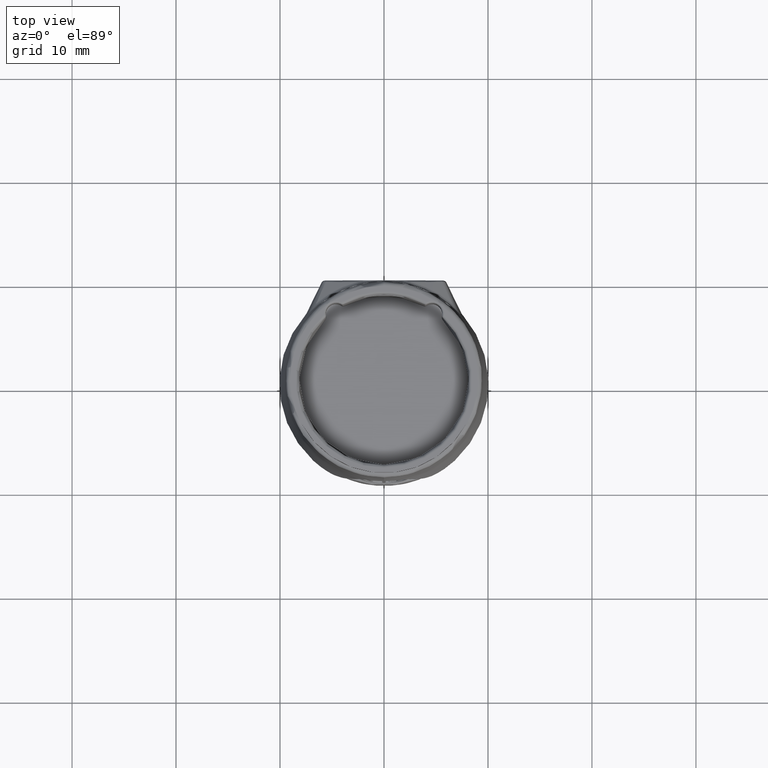
[diagram: clean part render]
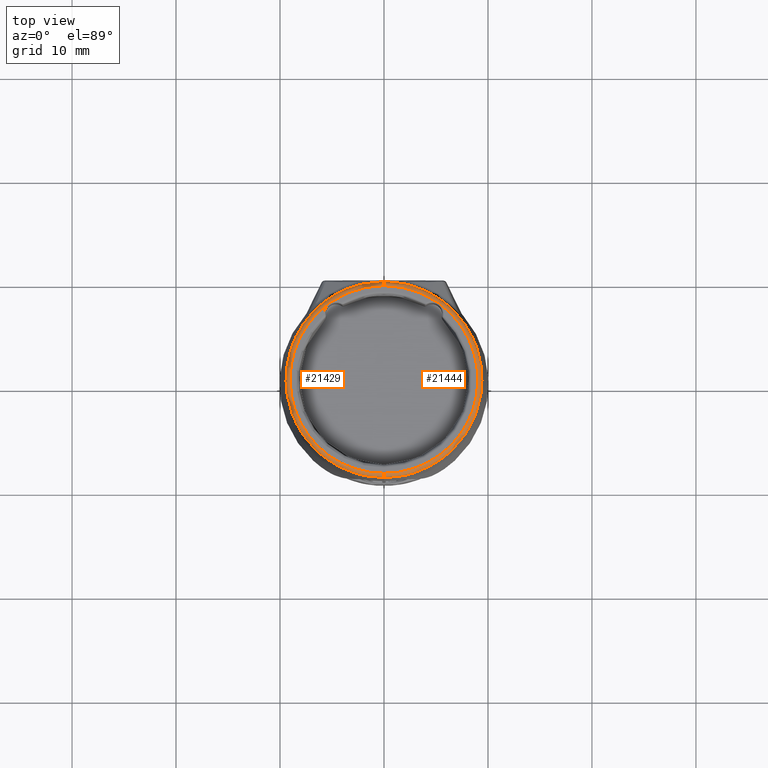
[diagram: same view with one multi-face feature highlighted, each face labeled with its STEP entity id]
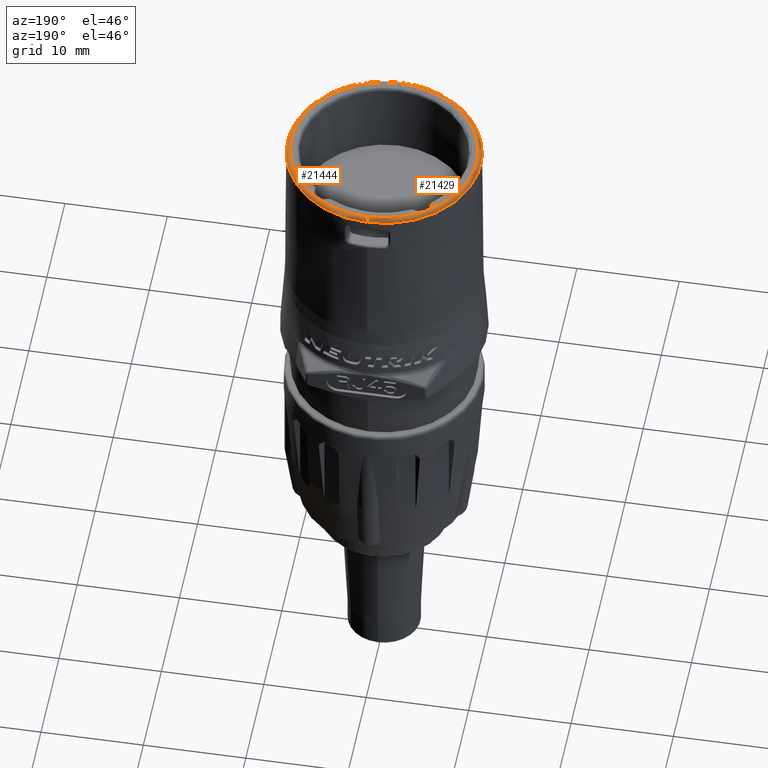
[diagram: same view with one multi-face feature highlighted, each face labeled with its STEP entity id]
A machine part, top view. The highlighted faces form ONE feature: a constant-radius fillet chain: 2 tangent blend faces with common blend radius 0.4 mm. The faces share edges in the B-rep.
A second angle (auxiliary view) of the same feature is appended — it is thin or edge-on in the first view.
Their STEP definitions:
[1] entity #21429 (Torus):
#548=CARTESIAN_POINT('',(0.E0,0.E0,1.450304869193E1));
#549=DIRECTION('',(0.E0,0.E0,1.E0));
#550=DIRECTION('',(0.E0,1.E0,0.E0));
#551=AXIS2_PLACEMENT_3D('',#548,#549,#550);
#8015=CARTESIAN_POINT('',(0.E0,0.E0,1.49E1));
#8016=DIRECTION('',(0.E0,0.E0,1.E0));
#8017=DIRECTION('',(0.E0,1.E0,0.E0));
#8018=AXIS2_PLACEMENT_3D('',#8015,#8016,#8017);
#8055=CARTESIAN_POINT('',(0.E0,0.E0,1.49E1));
#8056=DIRECTION('',(0.E0,0.E0,1.E0));
#8057=DIRECTION('',(-6.081444642054E-1,7.938263731171E-1,0.E0));
#8058=AXIS2_PLACEMENT_3D('',#8055,#8056,#8057);
#8104=CARTESIAN_POINT('',(-5.490350903456E0,7.166693946291E0,1.49E1));
#8105=CARTESIAN_POINT('',(-5.461955217609E0,7.210845155447E0,1.489999989587E1));
#8106=CARTESIAN_POINT('',(-5.395809532123E0,7.292528246032E0,1.489779161618E1));
#8107=CARTESIAN_POINT('',(-5.269581667580E0,7.389949337916E0,1.489709066223E1));
#8108=CARTESIAN_POINT('',(-5.156534284287E0,7.437662684893E0,1.489999937234E1));
#8109=CARTESIAN_POINT('',(-5.093330733124E0,7.454088653669E0,1.49E1));
#8111=CARTESIAN_POINT('',(0.E0,9.028037161828E0,1.45E1));
#8112=DIRECTION('',(-1.E0,0.E0,0.E0));
#8113=DIRECTION('',(0.E0,0.E0,1.E0));
#8114=AXIS2_PLACEMENT_3D('',#8111,#8112,#8113);
#8123=CARTESIAN_POINT('',(0.E0,-9.028037161828E0,1.45E1));
#8124=DIRECTION('',(1.E0,0.E0,0.E0));
#8125=DIRECTION('',(0.E0,0.E0,1.E0));
#8126=AXIS2_PLACEMENT_3D('',#8123,#8124,#8125);
#8239=CARTESIAN_POINT('',(0.E0,-9.428025543507E0,1.450304869193E1));
#8240=CARTESIAN_POINT('',(0.E0,9.428025543507E0,1.450304869193E1));
#8241=VERTEX_POINT('',#8239);
#8242=VERTEX_POINT('',#8240);
#8243=CARTESIAN_POINT('',(0.E0,9.028037161828E0,1.49E1));
#8244=VERTEX_POINT('',#8243);
#8245=CARTESIAN_POINT('',(0.E0,-9.028037161828E0,1.49E1));
#8246=VERTEX_POINT('',#8245);
#8251=CARTESIAN_POINT('',(-5.093331058870E0,7.454088493633E0,1.49E1));
#8252=VERTEX_POINT('',#8251);
#8255=VERTEX_POINT('',#8104);
#21414=CARTESIAN_POINT('',(0.E0,0.E0,1.45E1));
#21415=DIRECTION('',(0.E0,0.E0,-1.E0));
#21416=DIRECTION('',(1.013973348842E-2,9.999485915810E-1,0.E0));
#21417=AXIS2_PLACEMENT_3D('',#21414,#21415,#21416);
#21418=TOROIDAL_SURFACE('',#21417,9.028037161828E0,4.E-1);
#21419=ORIENTED_EDGE('',*,*,#21405,.F.);
#21420=ORIENTED_EDGE('',*,*,#21284,.T.);
#21422=ORIENTED_EDGE('',*,*,#21421,.T.);
#21423=ORIENTED_EDGE('',*,*,#10103,.F.);
#21425=ORIENTED_EDGE('',*,*,#21424,.F.);
#21426=ORIENTED_EDGE('',*,*,#21263,.T.);
#21427=EDGE_LOOP('',(#21419,#21420,#21422,#21423,#21425,#21426));
#21428=FACE_OUTER_BOUND('',#21427,.F.);
#21429=ADVANCED_FACE('',(#21428),#21418,.T.);
#552=CIRCLE('',#551,9.428025543507E0);
#8019=CIRCLE('',#8018,9.028037161828E0);
#8059=CIRCLE('',#8058,9.028037161828E0);
#8110=B_SPLINE_CURVE_WITH_KNOTS('',3,(#8104,#8105,#8106,#8107,#8108,#8109),
.UNSPECIFIED.,.F.,.F.,(4,1,1,4),(0.E0,3.333333333333E-1,6.666666666667E-1,1.E0),
.UNSPECIFIED.);
#8115=CIRCLE('',#8114,4.E-1);
#8127=CIRCLE('',#8126,4.E-1);
#10103=EDGE_CURVE('',#8242,#8241,#552,.T.);
#21263=EDGE_CURVE('',#8244,#8252,#8019,.T.);
#21284=EDGE_CURVE('',#8255,#8246,#8059,.T.);
#21405=EDGE_CURVE('',#8255,#8252,#8110,.T.);
#21421=EDGE_CURVE('',#8246,#8241,#8127,.T.);
#21424=EDGE_CURVE('',#8244,#8242,#8115,.T.);
[2] entity #21444 (Torus):
#16=CARTESIAN_POINT('',(0.E0,0.E0,1.450304869193E1));
#17=DIRECTION('',(0.E0,0.E0,1.E0));
#18=DIRECTION('',(0.E0,-1.E0,0.E0));
#19=AXIS2_PLACEMENT_3D('',#16,#17,#18);
#8020=CARTESIAN_POINT('',(0.E0,0.E0,1.49E1));
#8021=DIRECTION('',(0.E0,0.E0,1.E0));
#8022=DIRECTION('',(5.641681135638E-1,8.256599418876E-1,0.E0));
#8023=AXIS2_PLACEMENT_3D('',#8020,#8021,#8022);
#8050=CARTESIAN_POINT('',(0.E0,0.E0,1.49E1));
#8051=DIRECTION('',(0.E0,0.E0,1.E0));
#8052=DIRECTION('',(0.E0,-1.E0,0.E0));
#8053=AXIS2_PLACEMENT_3D('',#8050,#8051,#8052);
#8111=CARTESIAN_POINT('',(0.E0,9.028037161828E0,1.45E1));
#8112=DIRECTION('',(-1.E0,0.E0,0.E0));
#8113=DIRECTION('',(0.E0,0.E0,1.E0));
#8114=AXIS2_PLACEMENT_3D('',#8111,#8112,#8113);
#8116=CARTESIAN_POINT('',(5.093330640673E0,7.454088683695E0,1.49E1));
#8117=CARTESIAN_POINT('',(5.144142019638E0,7.440903540070E0,1.489999989587E1));
#8118=CARTESIAN_POINT('',(5.242398289139E0,7.403579468940E0,1.489779161618E1));
#8119=CARTESIAN_POINT('',(5.374370981191E0,7.314094518648E0,1.489709066223E1));
#8120=CARTESIAN_POINT('',(5.455005942817E0,7.221605250119E0,1.489999937234E1));
#8121=CARTESIAN_POINT('',(5.490350830076E0,7.166694046576E0,1.49E1));
#8123=CARTESIAN_POINT('',(0.E0,-9.028037161828E0,1.45E1));
#8124=DIRECTION('',(1.E0,0.E0,0.E0));
#8125=DIRECTION('',(0.E0,0.E0,1.E0));
#8126=AXIS2_PLACEMENT_3D('',#8123,#8124,#8125);
#8239=CARTESIAN_POINT('',(0.E0,-9.428025543507E0,1.450304869193E1));
#8240=CARTESIAN_POINT('',(0.E0,9.428025543507E0,1.450304869193E1));
#8241=VERTEX_POINT('',#8239);
#8242=VERTEX_POINT('',#8240);
#8243=CARTESIAN_POINT('',(0.E0,9.028037161828E0,1.49E1));
#8244=VERTEX_POINT('',#8243);
#8245=CARTESIAN_POINT('',(0.E0,-9.028037161828E0,1.49E1));
#8246=VERTEX_POINT('',#8245);
#8267=CARTESIAN_POINT('',(5.490350502056E0,7.166694381959E0,1.49E1));
#8268=VERTEX_POINT('',#8267);
#8271=VERTEX_POINT('',#8116);
#21430=CARTESIAN_POINT('',(0.E0,0.E0,1.45E1));
#21431=DIRECTION('',(0.E0,0.E0,-1.E0));
#21432=DIRECTION('',(-1.013973348842E-2,-9.999485915810E-1,0.E0));
#21433=AXIS2_PLACEMENT_3D('',#21430,#21431,#21432);
#21434=TOROIDAL_SURFACE('',#21433,9.028037161828E0,4.E-1);
#21436=ORIENTED_EDGE('',*,*,#21435,.F.);
#21437=ORIENTED_EDGE('',*,*,#21265,.T.);
#21438=ORIENTED_EDGE('',*,*,#21424,.T.);
#21439=ORIENTED_EDGE('',*,*,#9364,.F.);
#21440=ORIENTED_EDGE('',*,*,#21421,.F.);
#21441=ORIENTED_EDGE('',*,*,#21282,.T.);
#21442=EDGE_LOOP('',(#21436,#21437,#21438,#21439,#21440,#21441));
#21443=FACE_OUTER_BOUND('',#21442,.F.);
#21444=ADVANCED_FACE('',(#21443),#21434,.T.);
#20=CIRCLE('',#19,9.428025543507E0);
#8024=CIRCLE('',#8023,9.028037161828E0);
#8054=CIRCLE('',#8053,9.028037161828E0);
#8115=CIRCLE('',#8114,4.E-1);
#8122=B_SPLINE_CURVE_WITH_KNOTS('',3,(#8116,#8117,#8118,#8119,#8120,#8121),
.UNSPECIFIED.,.F.,.F.,(4,1,1,4),(0.E0,3.333333333333E-1,6.666666666667E-1,1.E0),
.UNSPECIFIED.);
#8127=CIRCLE('',#8126,4.E-1);
#9364=EDGE_CURVE('',#8241,#8242,#20,.T.);
#21265=EDGE_CURVE('',#8271,#8244,#8024,.T.);
#21282=EDGE_CURVE('',#8246,#8268,#8054,.T.);
#21421=EDGE_CURVE('',#8246,#8241,#8127,.T.);
#21424=EDGE_CURVE('',#8244,#8242,#8115,.T.);
#21435=EDGE_CURVE('',#8271,#8268,#8122,.T.);